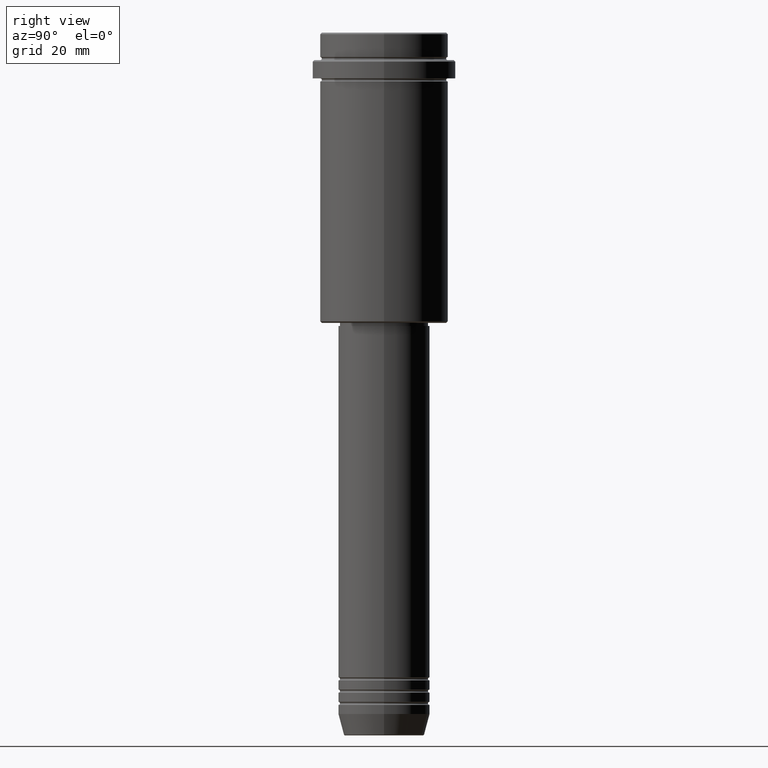
[diagram: clean part render]
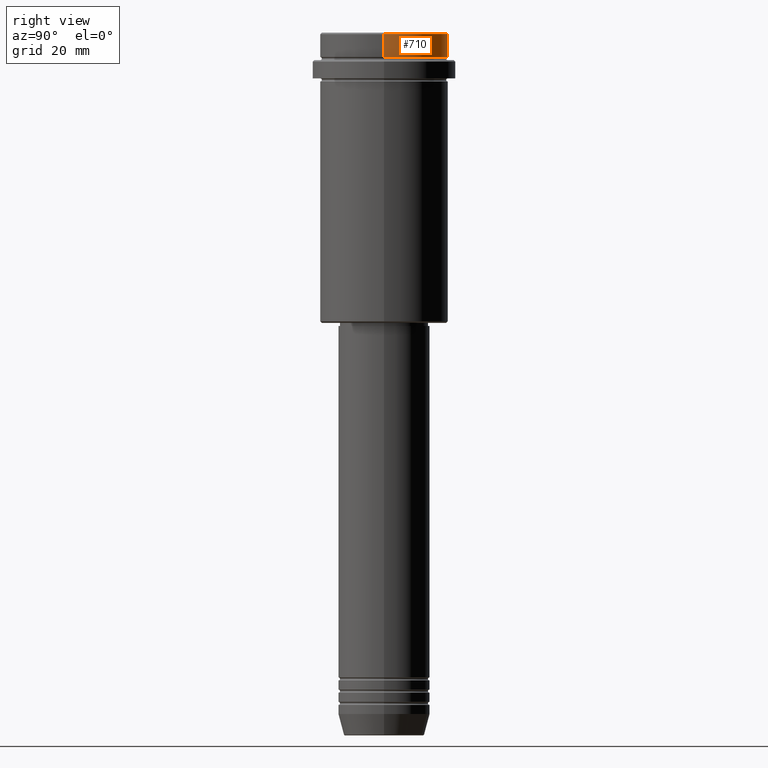
[diagram: same view with one face highlighted and labeled with its STEP entity id]
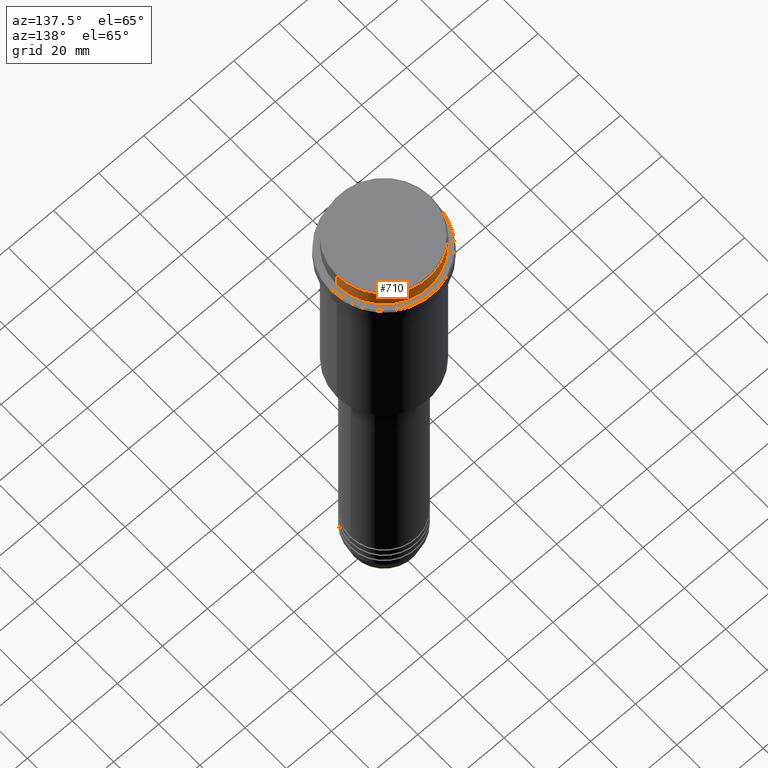
[diagram: same view with one face highlighted and labeled with its STEP entity id]
A machine part, right view. The second image highlights one B-rep face of the part: STEP entity #710.
A second angle (auxiliary view) of the same face is appended — the face is thin or edge-on in the first view.
In plain terms, the highlighted cylindrical surface (partial cylindrical patch) has radius 21 mm, axis along (-0, -0, 1).
Its self-contained STEP definition (entity closure, byte-faithful):
#47 = DIRECTION ( 'NONE',  ( 1.000000000000000000, 0.000000000000000000, 0.000000000000000000 ) ) ;
#54 = DIRECTION ( 'NONE',  ( -0.000000000000000000, -0.000000000000000000, 1.000000000000000000 ) ) ;
#82 = ORIENTED_EDGE ( 'NONE', *, *, #910, .T. ) ;
#109 = ORIENTED_EDGE ( 'NONE', *, *, #880, .T. ) ;
#145 = CARTESIAN_POINT ( 'NONE',  ( 0.000000000000000000, 0.000000000000000000, -0.5000000000000073275 ) ) ;
#169 = AXIS2_PLACEMENT_3D ( 'NONE', #798, #382, #693 ) ;
#245 = CYLINDRICAL_SURFACE ( 'NONE', #609, 20.99999999999999645 ) ;
#303 = VERTEX_POINT ( 'NONE', #1266 ) ;
#308 = VECTOR ( 'NONE', #1084, 1000.000000000000000 ) ;
#351 = DIRECTION ( 'NONE',  ( -0.000000000000000000, -0.000000000000000000, 1.000000000000000000 ) ) ;
#362 = CARTESIAN_POINT ( 'NONE',  ( 0.000000000000000000, 0.000000000000000000, 0.000000000000000000 ) ) ;
#382 = DIRECTION ( 'NONE',  ( -0.000000000000000000, -0.000000000000000000, 1.000000000000000000 ) ) ;
#404 = LINE ( 'NONE', #619, #308 ) ;
#416 = CARTESIAN_POINT ( 'NONE',  ( 20.99999999999999645, 0.000000000000000000, -7.999999999999998224 ) ) ;
#470 = CARTESIAN_POINT ( 'NONE',  ( 20.99999999999999645, 0.000000000000000000, -0.5000000000000073275 ) ) ;
#519 = VERTEX_POINT ( 'NONE', #416 ) ;
#561 = FACE_OUTER_BOUND ( 'NONE', #750, .T. ) ;
#589 = DIRECTION ( 'NONE',  ( 0.000000000000000000, 0.000000000000000000, -1.000000000000000000 ) ) ;
#609 = AXIS2_PLACEMENT_3D ( 'NONE', #362, #351, #1228 ) ;
#611 = AXIS2_PLACEMENT_3D ( 'NONE', #145, #589, #47 ) ;
#619 = CARTESIAN_POINT ( 'NONE',  ( 20.99999999999999645, 0.000000000000000000, 0.000000000000000000 ) ) ;
#693 = DIRECTION ( 'NONE',  ( 1.000000000000000000, 0.000000000000000000, 0.000000000000000000 ) ) ;
#710 = ADVANCED_FACE ( 'NONE', ( #561 ), #245, .T. ) ;
#750 = EDGE_LOOP ( 'NONE', ( #109, #1403, #82, #869 ) ) ;
#754 = VERTEX_POINT ( 'NONE', #776 ) ;
#776 = CARTESIAN_POINT ( 'NONE',  ( -20.99999999999999645, 2.571758278209441267E-15, -0.5000000000000073275 ) ) ;
#798 = CARTESIAN_POINT ( 'NONE',  ( 0.000000000000000000, 0.000000000000000000, -7.999999999999998224 ) ) ;
#837 = CIRCLE ( 'NONE', #611, 20.99999999999999645 ) ;
#869 = ORIENTED_EDGE ( 'NONE', *, *, #1038, .F. ) ;
#880 = EDGE_CURVE ( 'NONE', #519, #303, #1183, .T. ) ;
#910 = EDGE_CURVE ( 'NONE', #754, #1250, #837, .T. ) ;
#1038 = EDGE_CURVE ( 'NONE', #519, #1250, #404, .T. ) ;
#1055 = LINE ( 'NONE', #1364, #1215 ) ;
#1084 = DIRECTION ( 'NONE',  ( -0.000000000000000000, -0.000000000000000000, 1.000000000000000000 ) ) ;
#1183 = CIRCLE ( 'NONE', #169, 20.99999999999999645 ) ;
#1215 = VECTOR ( 'NONE', #54, 1000.000000000000000 ) ;
#1228 = DIRECTION ( 'NONE',  ( 1.000000000000000000, 0.000000000000000000, 0.000000000000000000 ) ) ;
#1250 = VERTEX_POINT ( 'NONE', #470 ) ;
#1266 = CARTESIAN_POINT ( 'NONE',  ( -20.99999999999999645, 2.571758278209441267E-15, -7.999999999999998224 ) ) ;
#1364 = CARTESIAN_POINT ( 'NONE',  ( -20.99999999999999645, 2.571758278209441267E-15, 0.000000000000000000 ) ) ;
#1384 = EDGE_CURVE ( 'NONE', #303, #754, #1055, .T. ) ;
#1403 = ORIENTED_EDGE ( 'NONE', *, *, #1384, .T. ) ;